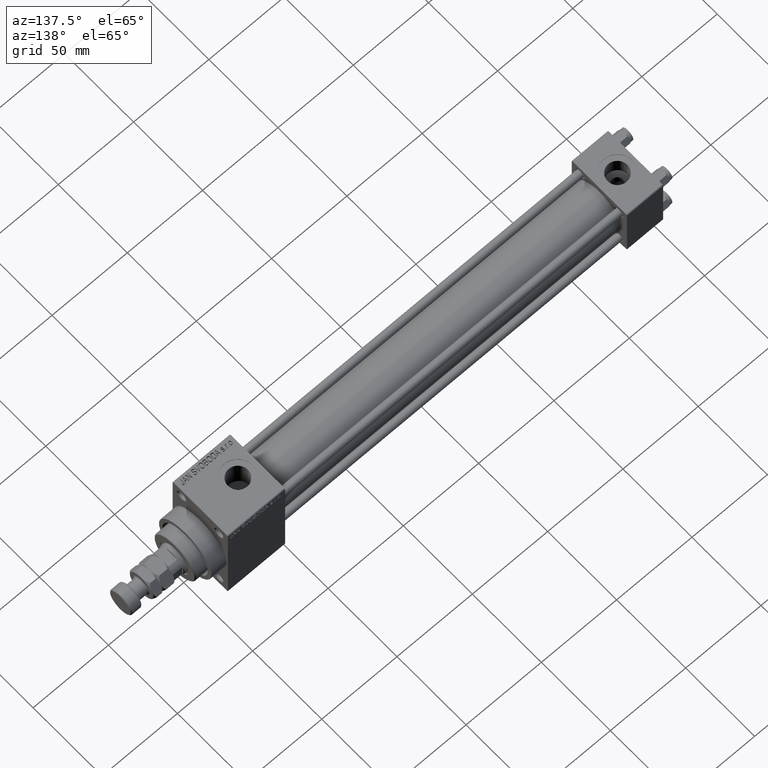
[diagram: clean part render]
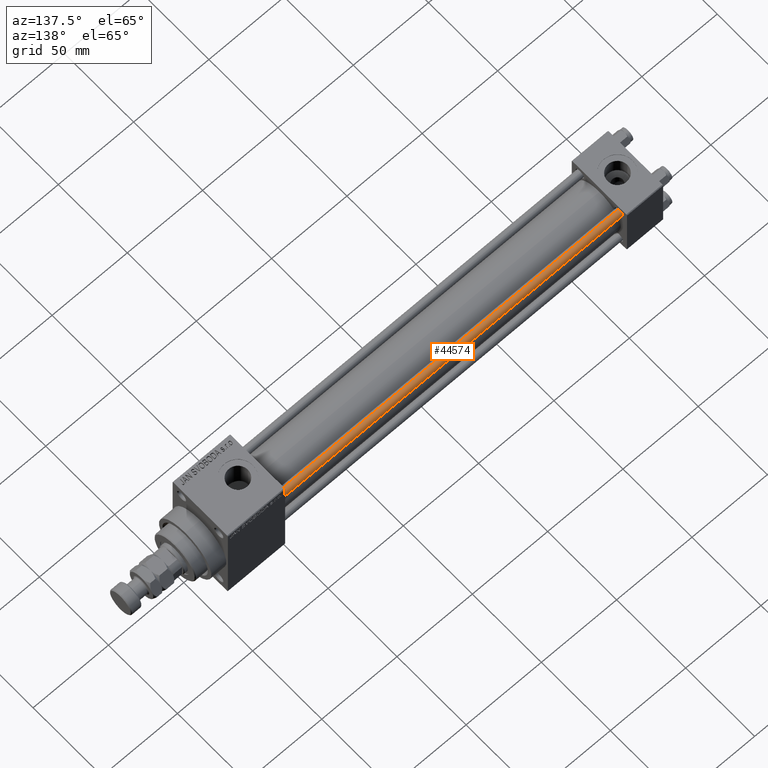
[diagram: same view with one face highlighted and labeled with its STEP entity id]
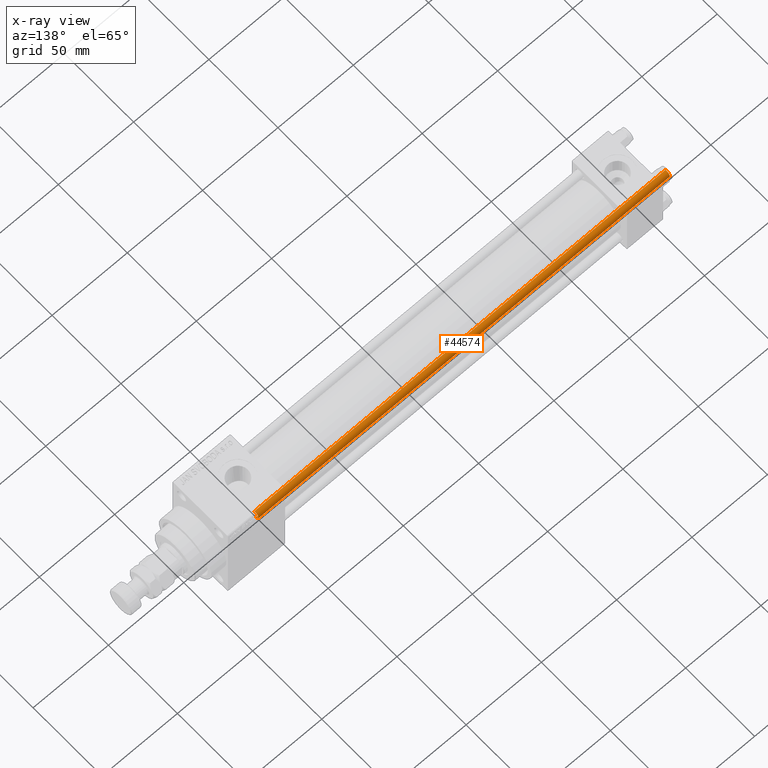
[diagram: x-ray of the same camera — body ghosted, the highlighted face saturated]
A machine part, auxiliary view. The second image highlights one B-rep face of the part: STEP entity #44574.
The next image is the same camera in x-ray: the body ghosted, the highlighted face saturated — about 0% of this face is hidden behind the body in this view.
In plain terms, the highlighted cylindrical surface (edge-blend (fillet) strip) has radius 2.5 mm, axis along (-1, -0, 0).
Its self-contained STEP definition (entity closure, byte-faithful):
#675 = CIRCLE ( 'NONE', #40786, 2.500000000000000000 ) ;
#2285 = CARTESIAN_POINT ( 'NONE',  ( -2.500000000000000000, 0.000000000000000000, 274.0000000000000000 ) ) ;
#3522 = FACE_OUTER_BOUND ( 'NONE', #23117, .T. ) ;
#5259 = DIRECTION ( 'NONE',  ( -0.000000000000000000, -0.000000000000000000, -1.000000000000000000 ) ) ;
#5923 = ORIENTED_EDGE ( 'NONE', *, *, #42199, .T. ) ;
#7348 = DIRECTION ( 'NONE',  ( -0.000000000000000000, -0.000000000000000000, -1.000000000000000000 ) ) ;
#10798 = CARTESIAN_POINT ( 'NONE',  ( 2.500000000000000000, 3.061616997868383141E-16, 274.0000000000000000 ) ) ;
#11725 = VERTEX_POINT ( 'NONE', #23650 ) ;
#15572 = CARTESIAN_POINT ( 'NONE',  ( 0.000000000000000000, 0.000000000000000000, 274.0000000000000000 ) ) ;
#18542 = CYLINDRICAL_SURFACE ( 'NONE', #28581, 2.500000000000000000 ) ;
#19902 = VERTEX_POINT ( 'NONE', #22725 ) ;
#20264 = LINE ( 'NONE', #2285, #39211 ) ;
#21381 = LINE ( 'NONE', #10798, #47387 ) ;
#22540 = VERTEX_POINT ( 'NONE', #39944 ) ;
#22725 = CARTESIAN_POINT ( 'NONE',  ( 2.500000000000000000, 3.061616997868383141E-16, 0.5000000000000004441 ) ) ;
#22754 = DIRECTION ( 'NONE',  ( 1.000000000000000000, 0.000000000000000000, 0.000000000000000000 ) ) ;
#23117 = EDGE_LOOP ( 'NONE', ( #33008, #5923, #40953, #44350 ) ) ;
#23650 = CARTESIAN_POINT ( 'NONE',  ( -2.500000000000000000, 0.000000000000000000, 0.5000000000000004441 ) ) ;
#28581 = AXIS2_PLACEMENT_3D ( 'NONE', #15572, #33587, #41947 ) ;
#29053 = DIRECTION ( 'NONE',  ( 0.000000000000000000, 0.000000000000000000, -1.000000000000000000 ) ) ;
#30165 = CARTESIAN_POINT ( 'NONE',  ( 0.000000000000000000, 0.000000000000000000, 0.5000000000000004441 ) ) ;
#33008 = ORIENTED_EDGE ( 'NONE', *, *, #43043, .T. ) ;
#33453 = EDGE_CURVE ( 'NONE', #22540, #11725, #20264, .T. ) ;
#33587 = DIRECTION ( 'NONE',  ( -0.000000000000000000, -0.000000000000000000, -1.000000000000000000 ) ) ;
#33952 = CARTESIAN_POINT ( 'NONE',  ( 0.000000000000000000, 0.000000000000000000, 273.5000000000000000 ) ) ;
#34061 = EDGE_CURVE ( 'NONE', #19902, #11725, #675, .T. ) ;
#34251 = CARTESIAN_POINT ( 'NONE',  ( 2.500000000000000000, 3.061616997868383141E-16, 273.5000000000000000 ) ) ;
#38739 = AXIS2_PLACEMENT_3D ( 'NONE', #33952, #29053, #48527 ) ;
#39211 = VECTOR ( 'NONE', #5259, 1000.000000000000000 ) ;
#39944 = CARTESIAN_POINT ( 'NONE',  ( -2.500000000000000000, 0.000000000000000000, 273.5000000000000000 ) ) ;
#40786 = AXIS2_PLACEMENT_3D ( 'NONE', #30165, #48194, #22754 ) ;
#40953 = ORIENTED_EDGE ( 'NONE', *, *, #34061, .T. ) ;
#41874 = CIRCLE ( 'NONE', #38739, 2.500000000000000000 ) ;
#41947 = DIRECTION ( 'NONE',  ( -1.000000000000000000, 0.000000000000000000, 0.000000000000000000 ) ) ;
#42199 = EDGE_CURVE ( 'NONE', #42842, #19902, #21381, .T. ) ;
#42842 = VERTEX_POINT ( 'NONE', #34251 ) ;
#43043 = EDGE_CURVE ( 'NONE', #22540, #42842, #41874, .T. ) ;
#44350 = ORIENTED_EDGE ( 'NONE', *, *, #33453, .F. ) ;
#44574 = ADVANCED_FACE ( 'NONE', ( #3522 ), #18542, .T. ) ;
#47387 = VECTOR ( 'NONE', #7348, 1000.000000000000000 ) ;
#48194 = DIRECTION ( 'NONE',  ( -0.000000000000000000, -0.000000000000000000, 1.000000000000000000 ) ) ;
#48527 = DIRECTION ( 'NONE',  ( 1.000000000000000000, 0.000000000000000000, 0.000000000000000000 ) ) ;